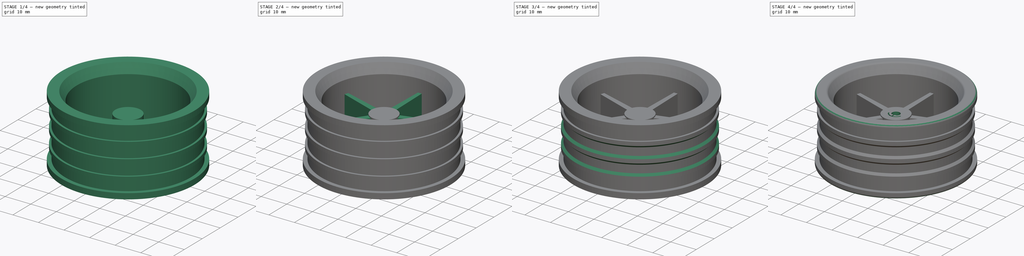
[diagram: build sequence overview — one tinted view per stage of 4, left to right]
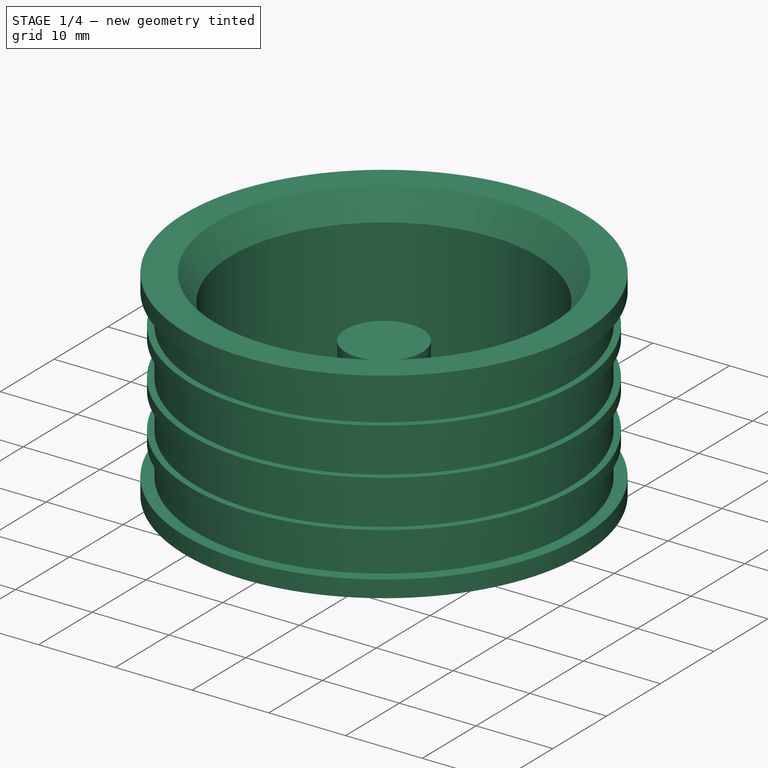
[diagram: stage 1 of 4 — iso view after this stage's code; geometry added in this stage tinted green]
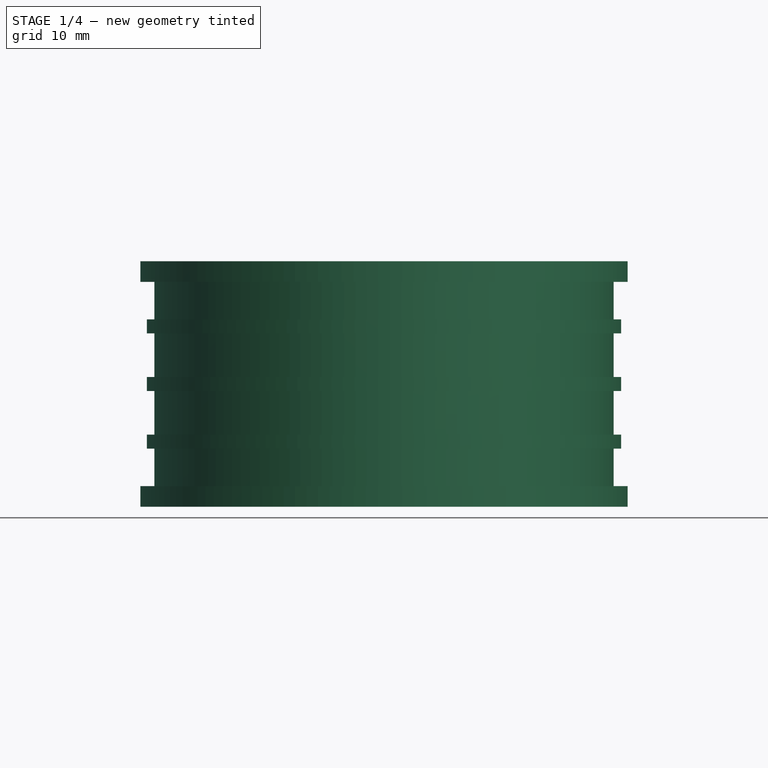
[diagram: stage 1 of 4 — front view after this stage's code; geometry added in this stage tinted green]
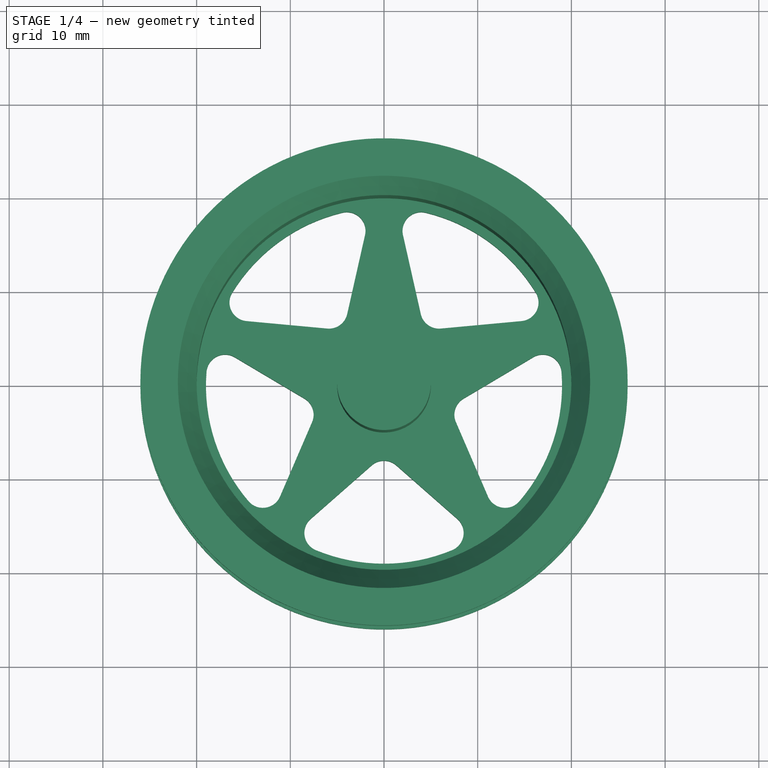
[diagram: stage 1 of 4 — top view after this stage's code; geometry added in this stage tinted green]
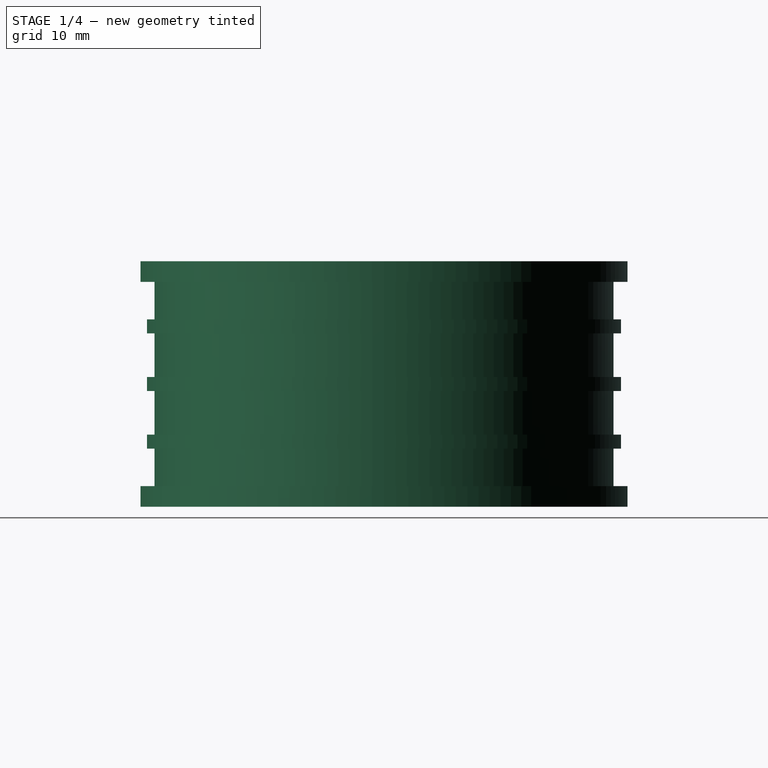
[diagram: stage 1 of 4 — right view after this stage's code; geometry added in this stage tinted green]
FCSTD DOCUMENT  (FreeCAD 0.18R4 (GitTag))
Label: Llants
License: All rights reserved
LicenseURL: http://en.wikipedia.org/wiki/All_rights_reserved
objects: Sketcher::SketchObject×5, PartDesign::Pocket×3, PartDesign::PolarPattern×2, PartDesign::Chamfer×2, PartDesign::Revolution×1, PartDesign::Pad×1, PartDesign::Draft×1, PartDesign::Fillet×1, PartDesign::Body×1, Part::Feature×1
note: 23 computed .brp shape members not serialized (recipe doc carries the construction recipe); baked Part::Feature solids carry a one-line shape summary decoded from their .brp

FEATURE [Sketcher::SketchObject] Sketch
  MapMode = 5
  Placement = pos=(0,0,0) rot=(1,0,0;1.5708rad)
  Support = -> [XZ_Plane]
  sketch-geometry (25):
    g0: LineSegment StartX=0 StartY=0 StartZ=0 EndX=26 EndY=0 EndZ=0
    g1: LineSegment StartX=26 StartY=0 StartZ=0 EndX=26 EndY=2.2 EndZ=0
    g2: LineSegment StartX=26 StartY=2.2 StartZ=0 EndX=24.5 EndY=2.2 EndZ=0
    g3: LineSegment StartX=24.5 StartY=2.2 StartZ=0 EndX=24.5 EndY=6.2 EndZ=0
    g4: LineSegment StartX=24.5 StartY=24 StartZ=0 EndX=26 EndY=24 EndZ=0
    g5: LineSegment StartX=26 StartY=24 StartZ=0 EndX=26 EndY=26.2 EndZ=0
    g6: LineSegment StartX=26 StartY=26.2 StartZ=0 EndX=22 EndY=26.2 EndZ=0
    g7: LineSegment StartX=22 StartY=26.2 StartZ=0 EndX=20 EndY=22.8 EndZ=0
    g8: LineSegment StartX=20 StartY=22.8 StartZ=0 EndX=20 EndY=2.8 EndZ=0
    g9: LineSegment StartX=20 StartY=2.8 StartZ=0 EndX=5 EndY=2.8 EndZ=0
    g10: LineSegment StartX=0 StartY=18.2 StartZ=0 EndX=0 EndY=0 EndZ=0
    g11: LineSegment StartX=24.5 StartY=6.2 StartZ=0 EndX=25.3 EndY=6.2 EndZ=0
    g12: LineSegment StartX=25.3 StartY=6.2 StartZ=0 EndX=25.3 EndY=7.7 EndZ=0
    g13: LineSegment StartX=25.3 StartY=7.7 StartZ=0 EndX=24.5 EndY=7.7 EndZ=0
    g14: LineSegment StartX=24.5 StartY=7.7 StartZ=0 EndX=24.5 EndY=12.35 EndZ=0
    g15: LineSegment StartX=24.5 StartY=12.35 StartZ=0 EndX=25.3 EndY=12.35 EndZ=0
    g16: LineSegment StartX=25.3 StartY=12.35 StartZ=0 EndX=25.3 EndY=13.85 EndZ=0
    g17: LineSegment StartX=25.3 StartY=13.85 StartZ=0 EndX=24.5 EndY=13.85 EndZ=0
    g18: LineSegment StartX=24.5 StartY=13.85 StartZ=0 EndX=24.5 EndY=18.5 EndZ=0
    g19: LineSegment StartX=24.5 StartY=18.5 StartZ=0 EndX=25.3 EndY=18.5 EndZ=0
    g20: LineSegment StartX=25.3 StartY=18.5 StartZ=0 EndX=25.3 EndY=20 EndZ=0
    g21: LineSegment StartX=25.3 StartY=20 StartZ=0 EndX=24.5 EndY=20 EndZ=0
    g22: LineSegment StartX=24.5 StartY=20 StartZ=0 EndX=24.5 EndY=24 EndZ=0
    g23: LineSegment StartX=5 StartY=18.2 StartZ=0 EndX=5 EndY=2.8 EndZ=0
    g24: LineSegment StartX=5 StartY=18.2 StartZ=0 EndX=0 EndY=18.2 EndZ=0
  constraints (73):
    c: Coincident(g0,g1)
    c: Coincident(g1,g2)
    c: Coincident(g2,g3)
    c: Coincident(g22,g4)
    c: Coincident(g4,g5)
    c: Coincident(g5,g6)
    c: Coincident(g6,g7)
    c: Coincident(g7,g8)
    c: Coincident(g8,g9)
    c: Coincident(g10,g0)
    c: Coincident(g0,g-1)
    c: Vertical(g3)
    c: Vertical(g8)
    c: Vertical(g5)
    c: Vertical(g1)
    c: Horizontal(g9)
    c: Horizontal(g0)
    c: Horizontal(g6)
    c: Horizontal(g4)
    c: Horizontal(g2)
    c: Vertical(g4,g1)
    c: Coincident(g11,g12)
    c: Coincident(g12,g13)
    c: Coincident(g13,g14)
    c: Coincident(g14,g15)
    c: Coincident(g15,g16)
    c: Coincident(g16,g17)
    c: Coincident(g17,g18)
    c: Coincident(g18,g19)
    c: Coincident(g19,g20)
    c: Coincident(g20,g21)
    c: Tangent(g3,g22)
    c: Coincident(g21,g22)
    c: Coincident(g11,g3)
    c: Horizontal(g11)
    c: Horizontal(g13)
    c: Horizontal(g15)
    c: Horizontal(g17)
    c: Horizontal(g19)
    c: Horizontal(g21)
    c: Vertical(g20)
    c: Vertical(g18)
    c: Vertical(g16)
    c: Vertical(g12)
    c: Equal(g12,g16)
    c: Equal(g16,g20)
    c: Equal(g15,g17)
    c: Equal(g17,g19)
    c: Equal(g19,g21)
    c: Equal(g21,g11)
    c: Equal(g11,g13)
    c: Equal(g3,g22)
    c: Equal(g18,g14)
    c: Distance(g1,g4) = 21.8
    c: Equal(g1,g5)
    c: Distance(g1) = 2.2
    c: Distance(g0) = 26
    c: Distance(g6) = 4
    c: Distance(g2) = 1.5
    c: Distance(g11) = 0.8
    c: Distance(g11,g20) = 13.8
    c: Distance(g20) = 1.5
    c: Distance(g8) = 20
    c: DistanceY(g0,g8) = 2.8
    c: DistanceX(g0,g8) = 20
    c: Coincident(g23,g9)
    c: Coincident(g10,g24)
    c: Coincident(g23,g24)
    c: Horizontal(g24)
    c: Vertical(g23)
    c: Vertical(g10)
    c: Distance(g24) = 5
    c: DistanceY(g23,g6) = 8
FEATURE [PartDesign::Revolution] Revolution
  Angle = 360
  Axis = (0,-2e-16,1)
  Base = (0,0,0)
  Placement = pos=(0,0,0) rot=(1,0,0;1.5708rad)
  Profile = -> Sketch
  ReferenceAxis = -> Sketch [V_Axis]
  Reversed = true
FEATURE [Sketcher::SketchObject] Sketch001
  MapMode = 5
  Placement = pos=(0,6e-16,2.8) rot=(0,0,1;3.14159rad)
  Support = -> [Revolution]
  sketch-geometry (6):
    g0: LineSegment StartX=-7.81973 StartY=14.2055 StartZ=0 EndX=-1.31973 EndY=8.49723 EndZ=0
    g1: LineSegment StartX=1.31973 StartY=8.49723 StartZ=0 EndX=7.81973 EndY=14.2055 EndZ=0
    g2: ArcOfCircle CenterX=0 CenterY=0 CenterZ=0 NormalX=0 NormalY=0 NormalZ=1 AngleXU=0 Radius=19 StartAngle=1.17845 EndAngle=1.96314
    g3: ArcOfCircle CenterX=6.5 CenterY=15.7083 CenterZ=0 NormalX=0 NormalY=0 NormalZ=1 AngleXU=0 Radius=2 StartAngle=5.43303 EndAngle=7.46164
    g4: ArcOfCircle CenterX=-6.5 CenterY=15.7083 CenterZ=0 NormalX=0 NormalY=0 NormalZ=1 AngleXU=0 Radius=2 StartAngle=1.96314 EndAngle=3.99175
    g5: ArcOfCircle CenterX=-1e-16 CenterY=10 CenterZ=0 NormalX=0 NormalY=0 NormalZ=1 AngleXU=0 Radius=2 StartAngle=3.99175 EndAngle=5.43303
  constraints (14):
    c: Coincident(g2,g-1)
    c: Tangent(g1,g3) = -1.5708
    c: Tangent(g2,g3) = -1.5708
    c: Tangent(g0,g4) = -1.5708
    c: Tangent(g2,g4) = -1.5708
    c: Tangent(g1,g5) = -1.5708
    c: Tangent(g0,g5) = -1.5708
    c: Symmetric(g1,g0,g-2)
    c: Symmetric(g4,g3,g-2)
    c: Equal(g4,g5)
    c: Radius(g2) = 19
    c: Distance(g3,g4) = 13
    c: Distance(g5,g2) = 10
    c: Radius(g3) = 2
FEATURE [PartDesign::Pocket] Pocket
  BaseFeature = -> Revolution
  Length = 5
  Length2 = 100
  Placement = pos=(0,0,0) rot=(1,0,0;1.5708rad)
  Profile = -> Sketch001
  Type = 0
FEATURE [PartDesign::PolarPattern] PolarPattern
  Angle = 360
  Axis = -> Z_Axis
  BaseFeature = -> Pocket
  Occurrences = 5
  Originals = -> [Pocket]
  Placement = pos=(0,0,0) rot=(1,0,0;1.5708rad)
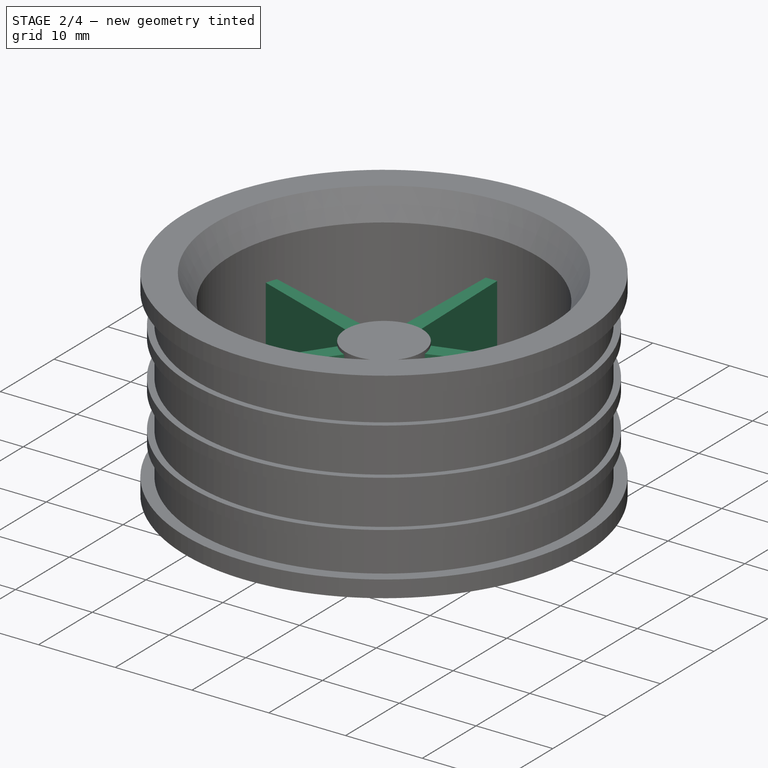
[diagram: stage 2 of 4 — iso view after this stage's code; geometry added in this stage tinted green]
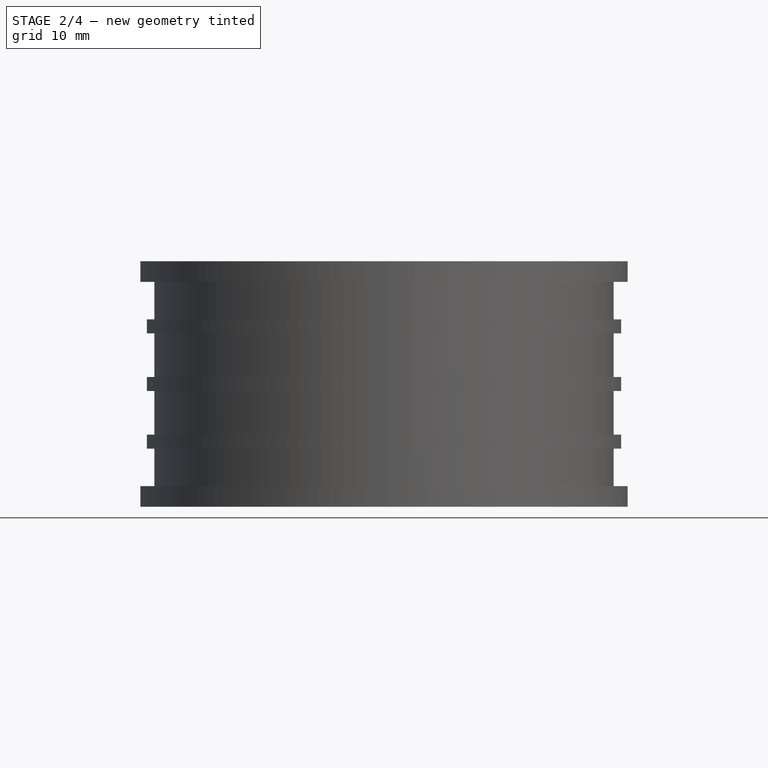
[diagram: stage 2 of 4 — front view after this stage's code; geometry added in this stage tinted green]
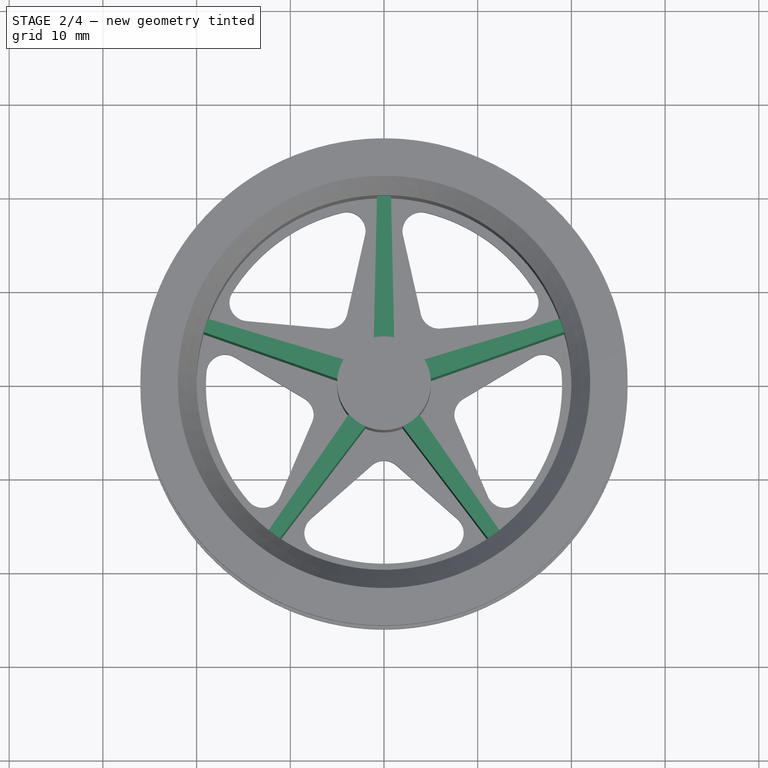
[diagram: stage 2 of 4 — top view after this stage's code; geometry added in this stage tinted green]
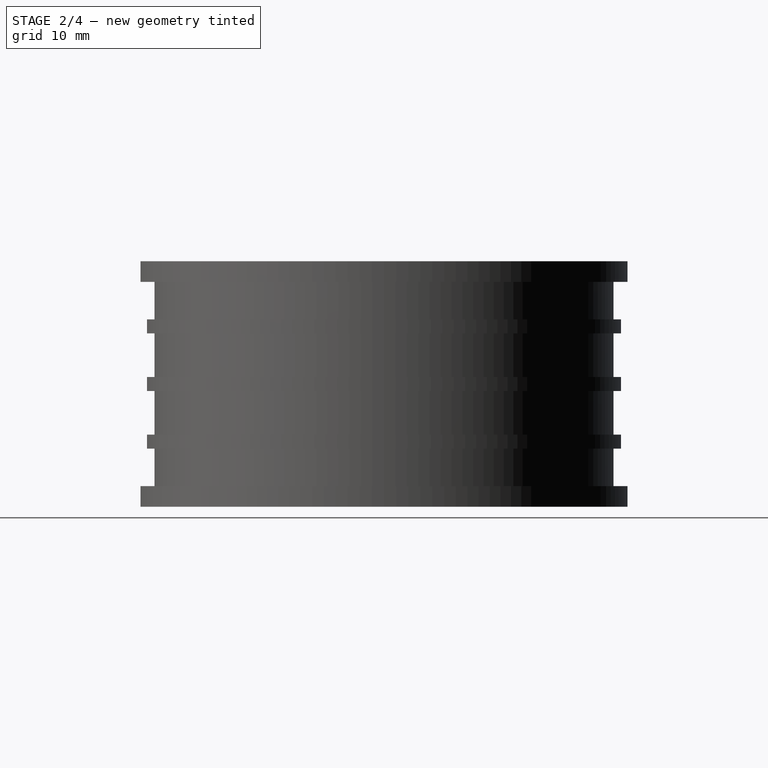
[diagram: stage 2 of 4 — right view after this stage's code; geometry added in this stage tinted green]
FEATURE [Sketcher::SketchObject] Sketch002
  MapMode = 5
  Placement = pos=(0,6e-16,2.8) rot=(0,0,1;3.14159rad)
  Support = -> [PolarPattern]
  sketch-geometry (4):
    g0: LineSegment StartX=-1.2 StartY=0 StartZ=0 EndX=-0.7 EndY=-22 EndZ=0
    g1: LineSegment StartX=-0.7 StartY=-22 StartZ=0 EndX=0.7 EndY=-22 EndZ=0
    g2: LineSegment StartX=0.7 StartY=-22 StartZ=0 EndX=1.2 EndY=0 EndZ=0
    g3: LineSegment StartX=1.2 StartY=0 StartZ=0 EndX=-1.2 EndY=0 EndZ=0
  constraints (10):
    c: Coincident(g0,g1)
    c: Coincident(g1,g2)
    c: Coincident(g2,g3)
    c: Coincident(g0,g3)
    c: Symmetric(g2,g0,g-2)
    c: Symmetric(g1,g0,g-2)
    c: PointOnObject(g-1,g3)
    c: Distance(g3) = 2.4
    c: Distance(g1) = 1.4
    c: DistanceY(g1,g2) = 22
FEATURE [PartDesign::Pad] Pad
  BaseFeature = -> PolarPattern
  Length = 15
  Length2 = 100
  Placement = pos=(0,0,0) rot=(1,0,0;1.5708rad)
  Profile = -> Sketch002
  Type = 0
FEATURE [PartDesign::PolarPattern] PolarPattern001
  Angle = 360
  Axis = -> Sketch002 [N_Axis]
  BaseFeature = -> Pad
  Occurrences = 5
  Originals = -> [Pad]
  Placement = pos=(0,0,0) rot=(1,0,0;1.5708rad)
FEATURE [Sketcher::SketchObject] Sketch004
  MapMode = 5
  Placement = pos=(0,0,0) rot=(1,0,0;3.14159rad)
  Support = -> [PolarPattern001]
  sketch-geometry (1):
    g0: Circle CenterX=0 CenterY=0 CenterZ=0 NormalX=0 NormalY=0 NormalZ=1 AngleXU=0 Radius=4.5
  constraints (2):
    c: Radius(g0) = 4.5
    c: Coincident(g0,g-1)
FEATURE [PartDesign::Pocket] Pocket002
  BaseFeature = -> PolarPattern001
  Length = 5
  Length2 = 100
  Placement = pos=(0,0,0) rot=(1,0,0;1.5708rad)
  Profile = -> Sketch004
  Type = 0
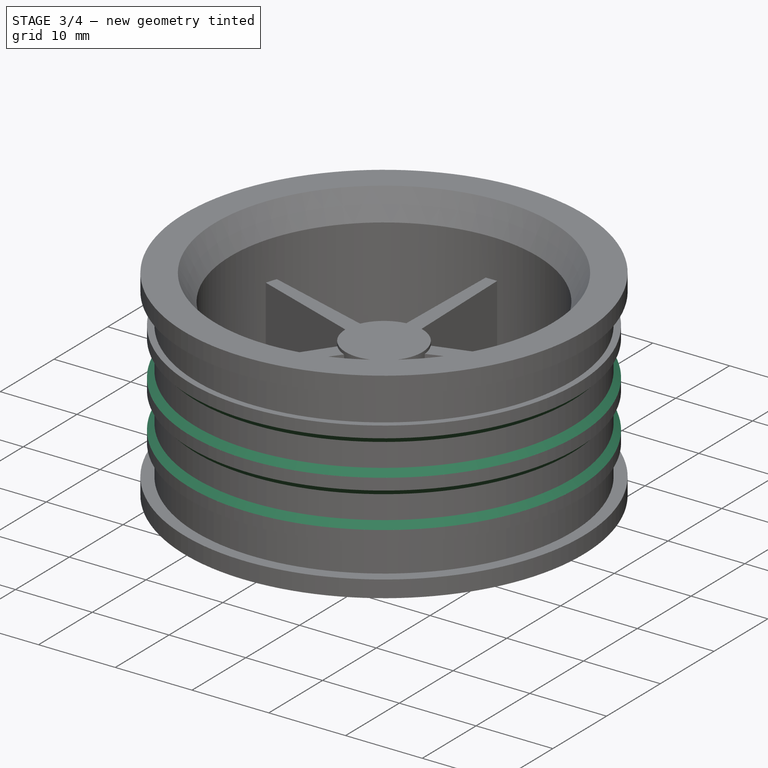
[diagram: stage 3 of 4 — iso view after this stage's code; geometry added in this stage tinted green]
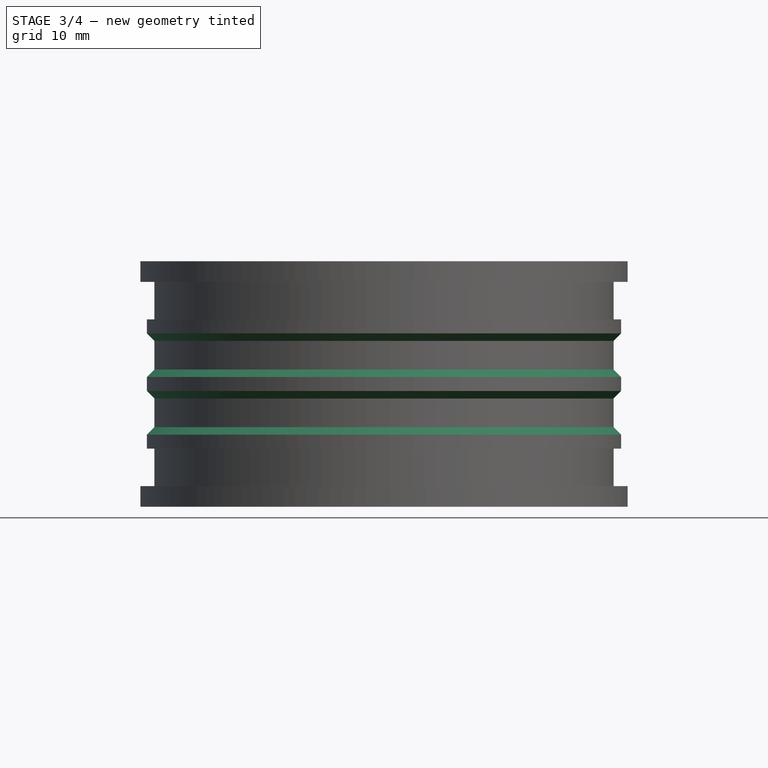
[diagram: stage 3 of 4 — front view after this stage's code; geometry added in this stage tinted green]
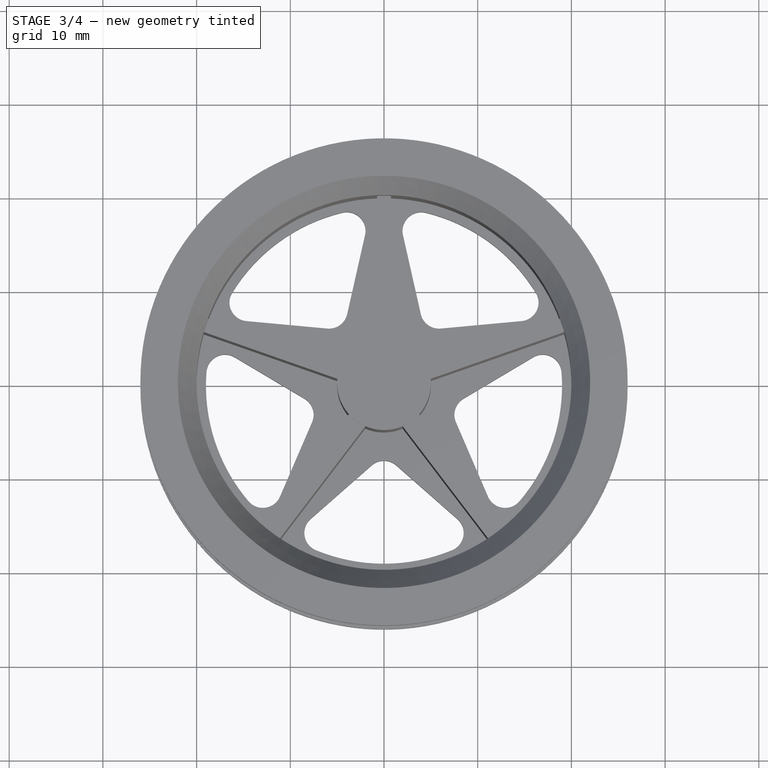
[diagram: stage 3 of 4 — top view after this stage's code; geometry added in this stage tinted green]
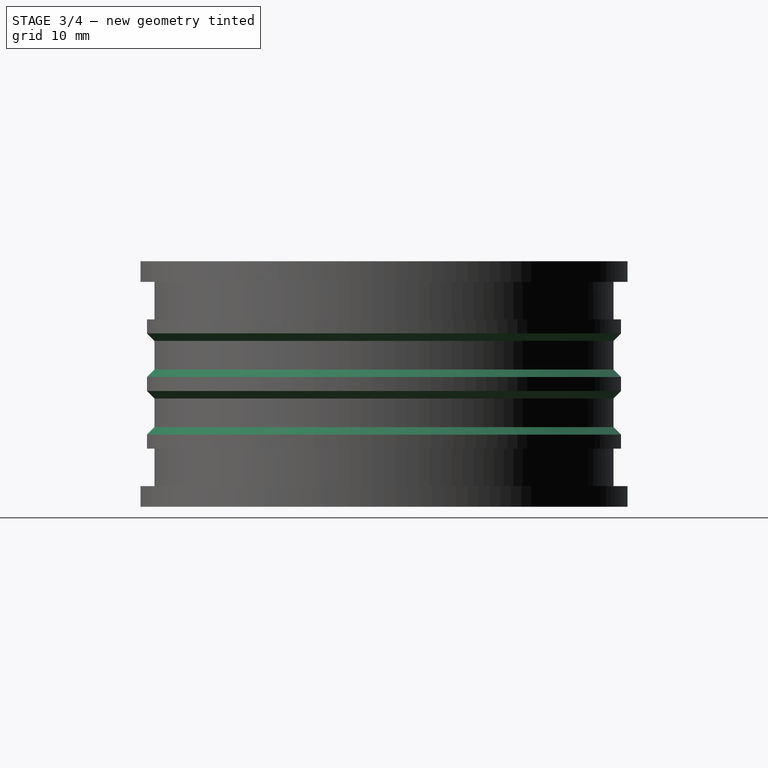
[diagram: stage 3 of 4 — right view after this stage's code; geometry added in this stage tinted green]
FEATURE [PartDesign::Draft] Draft
  Angle = 15
  Base = -> Pocket002 [Face58]
  BaseFeature = -> Pocket002
  NeutralPlane = -> Pocket002 [Face55]
  Placement = pos=(0,0,0) rot=(1,0,0;1.5708rad)
FEATURE [PartDesign::Chamfer] Chamfer
  Base = -> Draft [Face71,Face72]
  BaseFeature = -> Draft
  Placement = pos=(0,0,0) rot=(1,0,0;1.5708rad)
  Size = 0.799
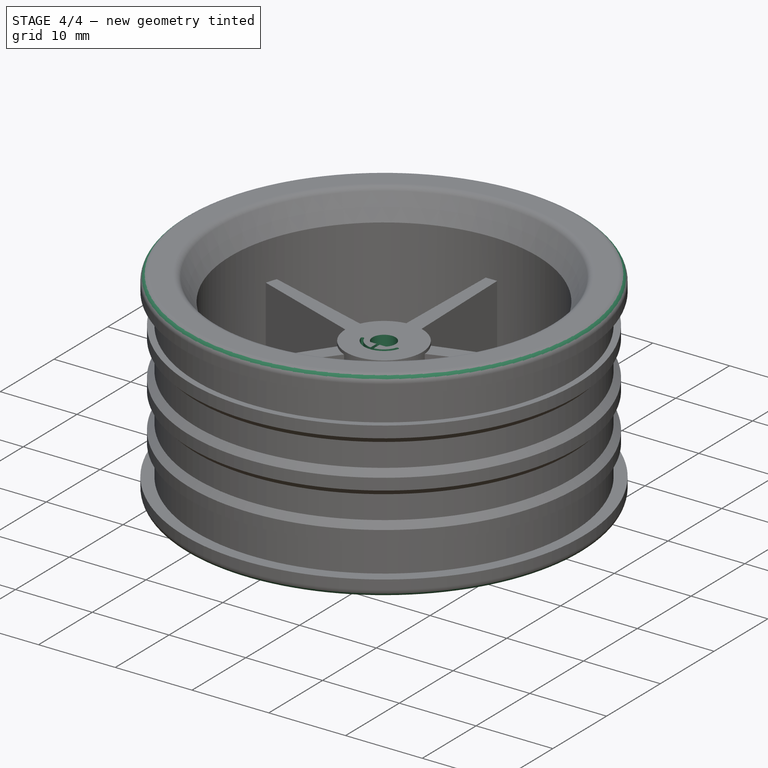
[diagram: stage 4 of 4 — iso view after this stage's code; geometry added in this stage tinted green]
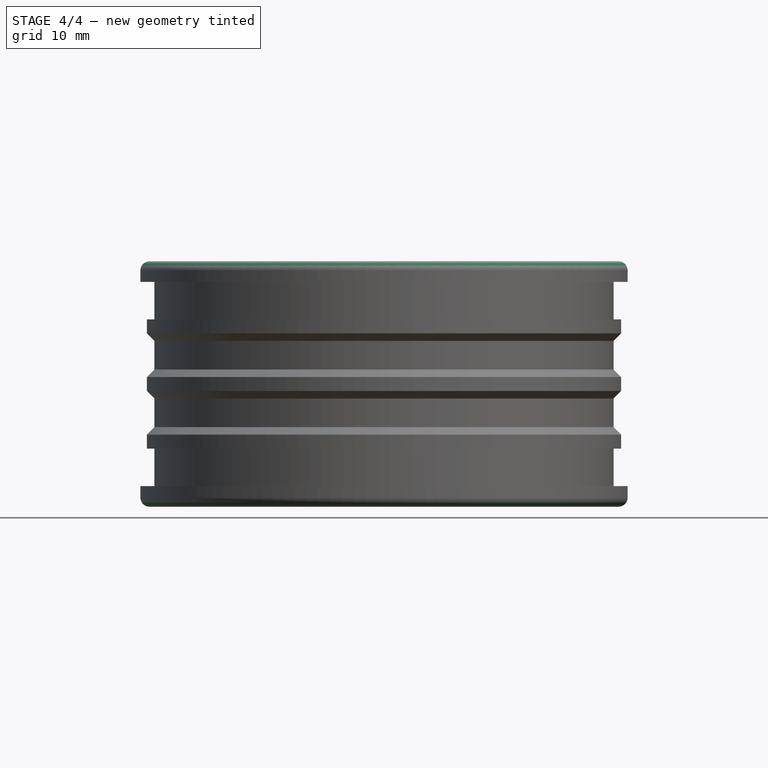
[diagram: stage 4 of 4 — front view after this stage's code; geometry added in this stage tinted green]
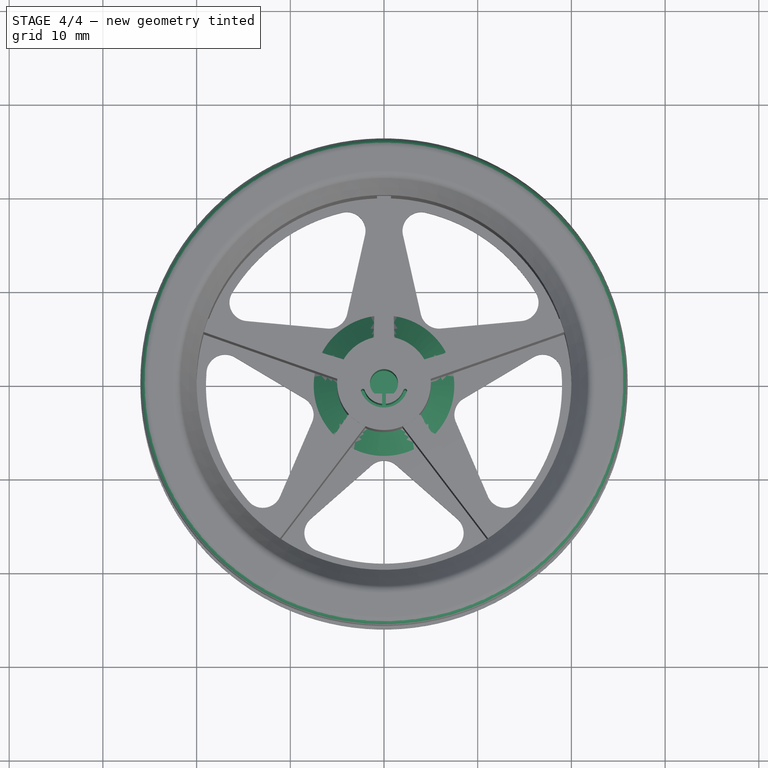
[diagram: stage 4 of 4 — top view after this stage's code; geometry added in this stage tinted green]
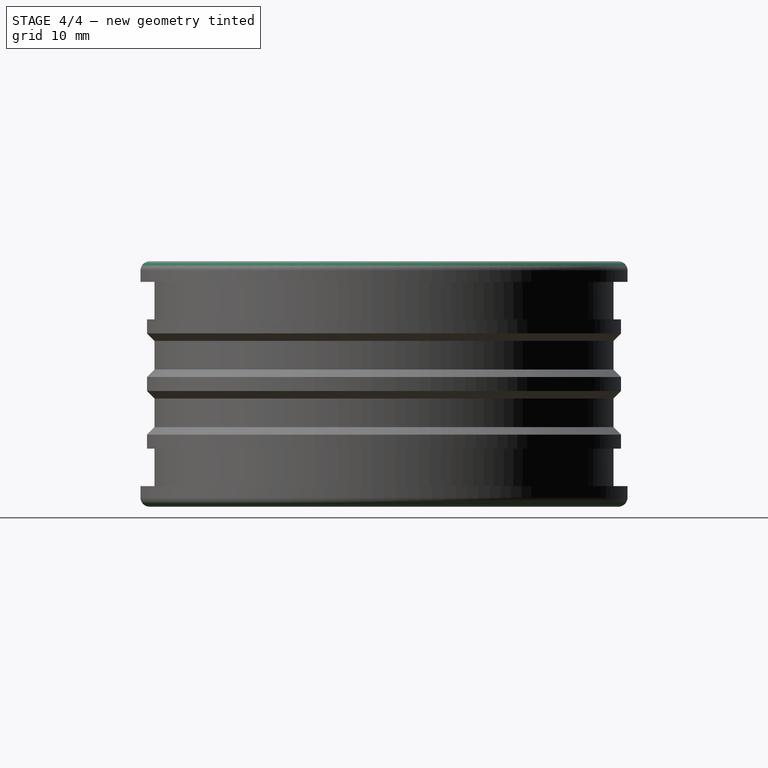
[diagram: stage 4 of 4 — right view after this stage's code; geometry added in this stage tinted green]
FEATURE [Sketcher::SketchObject] Sketch003
  MapMode = 5
  Placement = pos=(0,4e-15,18.2) rot=(0,0,1;3.14159rad)
  Support = -> [Chamfer]
  sketch-geometry (15):
    g0: ArcOfCircle CenterX=0 CenterY=0 CenterZ=0 NormalX=0 NormalY=0 NormalZ=1 AngleXU=0 Radius=1.5 StartAngle=2.31838 EndAngle=4.71239
    g1: LineSegment StartX=-1.0198 StartY=1.1 StartZ=0 EndX=-0.2 EndY=1.1 EndZ=0
    g2: LineSegment [constr] StartX=1.0198 StartY=1.1 StartZ=0 EndX=-1.0198 EndY=1.1 EndZ=0
    g3: LineSegment [constr] StartX=-1.0198 StartY=1.1 StartZ=0 EndX=-1.0198 EndY=0 EndZ=0
    g4: LineSegment [constr] StartX=-1.0198 StartY=0 StartZ=0 EndX=1.0198 EndY=0 EndZ=0
    g5: LineSegment [constr] StartX=1.0198 StartY=0 StartZ=0 EndX=1.0198 EndY=1.1 EndZ=0
    g6: ArcOfCircle CenterX=0 CenterY=0 CenterZ=0 NormalX=0 NormalY=0 NormalZ=1 AngleXU=0 Radius=2.6 StartAngle=0.339838 EndAngle=2.80176
    g7: ArcOfCircle CenterX=0 CenterY=0 CenterZ=0 NormalX=0 NormalY=0 NormalZ=1 AngleXU=0 Radius=2.2 StartAngle=0.339834 EndAngle=1.47976
    g8: ArcOfCircle CenterX=0 CenterY=0 CenterZ=0 NormalX=0 NormalY=0 NormalZ=1 AngleXU=0 Radius=2.2 StartAngle=1.66183 EndAngle=2.80176
    g9: ArcOfCircle CenterX=-2.26274 CenterY=0.8 CenterZ=0 NormalX=0 NormalY=0 NormalZ=1 AngleXU=0 Radius=0.2 StartAngle=2.80175 EndAngle=5.94334
    g10: ArcOfCircle CenterX=2.26274 CenterY=0.8 CenterZ=0 NormalX=0 NormalY=0 NormalZ=1 AngleXU=0 Radius=0.2 StartAngle=3.48146 EndAngle=6.62303
    g11: LineSegment StartX=-0.2 StartY=2.19089 StartZ=0 EndX=-0.2 EndY=1.1 EndZ=0
    g12: LineSegment StartX=0.2 StartY=2.19089 StartZ=0 EndX=0.2 EndY=1.1 EndZ=0
    g13: LineSegment StartX=0.2 StartY=1.1 StartZ=0 EndX=1.0198 EndY=1.1 EndZ=0
    g14: ArcOfCircle CenterX=0 CenterY=0 CenterZ=0 NormalX=0 NormalY=0 NormalZ=1 AngleXU=0 Radius=1.5 StartAngle=4.71239 EndAngle=7.1064
  constraints (43):
    c: Coincident(g0,g1)
    c: Distance(g5) = 1.1
    c: Vertical(g11)
    c: Vertical(g12)
    c: Symmetric(g1,g12,g-2)
    c: Coincident(g7,g12)
    c: Coincident(g1,g11)
    c: Coincident(g8,g11)
    c: Radius(g6) = 2.6
    c: Radius(g7) = 2.2
    c: Coincident(g4,g5)
    c: Vertical(g5)
    c: Vertical(g3)
    c: PointOnObject(g3,g-1)
    c: Horizontal(g4)
    c: Coincident(g2,g5)
    c: Coincident(g2,g13)
    c: Coincident(g0,g2)
    c: Coincident(g0,g3)
    c: Coincident(g7,g10)
    c: Coincident(g6,g10)
    c: Coincident(g6,g9)
    c: Coincident(g8,g9)
    c: Coincident(g12,g13)
    c: Coincident(g0,g-1)
    c: Tangent(g10,g6)
    c: Tangent(g10,g7)
    c: Tangent(g9,g8)
    c: Distance(g1,g12) = 0.4
    c: Equal(g12,g11)
    c: Coincident(g7,g0)
    c: Coincident(g8,g0)
    c: Horizontal(g13)
    c: Horizontal(g2)
    c: Coincident(g14,g0)
    c: Radius(g14) = 1.5
    c: Coincident(g3,g4)
    c: Coincident(g0,g14)
    c: Coincident(g2,g14)
    c: Symmetric(g10,g9,g-2)
    c: Coincident(g0,g6)
    c: DistanceY(g0,g10) = 0.8
    c: PointOnObject(g0,g-2)
FEATURE [PartDesign::Pocket] Pocket003
  BaseFeature = -> Chamfer
  Length = 10
  Length2 = 100
  Placement = pos=(0,0,0) rot=(1,0,0;1.5708rad)
  Profile = -> Sketch003
  Type = 0
FEATURE [PartDesign::Fillet] Fillet
  Base = -> Pocket003 [Face86,Face13]
  BaseFeature = -> Pocket003
  Placement = pos=(0,0,0) rot=(1,0,0;1.5708rad)
  Radius = 1
FEATURE [PartDesign::Chamfer] Chamfer001
  Base = -> Fillet [Edge186,Edge181,Edge167,Edge177,Edge172]
  BaseFeature = -> Fillet
  Placement = pos=(0,0,0) rot=(1,0,0;1.5708rad)
  Size = 2.5
FEATURE [PartDesign::Body] Body
  Group = -> [Sketch,Revolution,Sketch001,Pocket,PolarPattern,Sketch002,Pad,PolarPattern001,Sketch003,Sketch004,Pocket002,Draft,Chamfer,Pocket003,Fillet,Chamfer001]
  Origin = -> Origin
  Tip = -> Chamfer001
FEATURE [Part::Feature] Part__Feature  label="Wheel D65x26"
  shape: bbox 69.04 x 69 x 30 mm, 803 faces, 2 solids (baked)
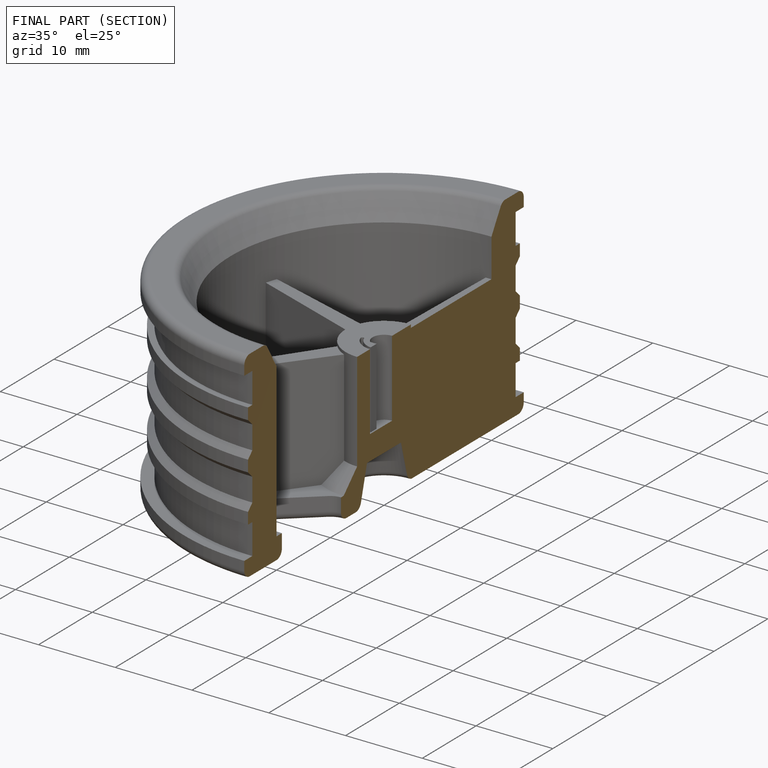
[diagram: finished part — half-section view (interior)]
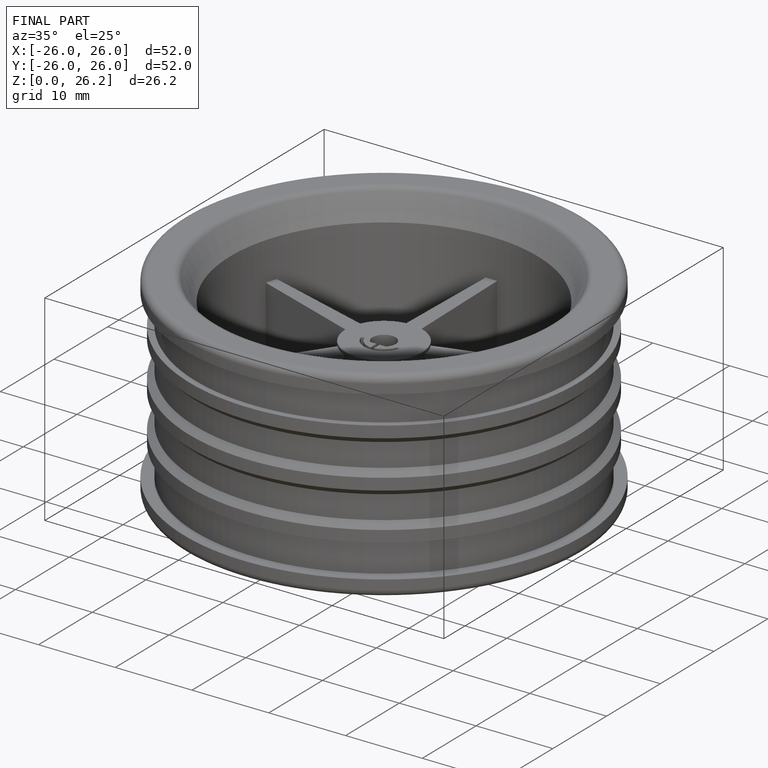
[diagram: finished part — iso view with bounding-box wireframe]
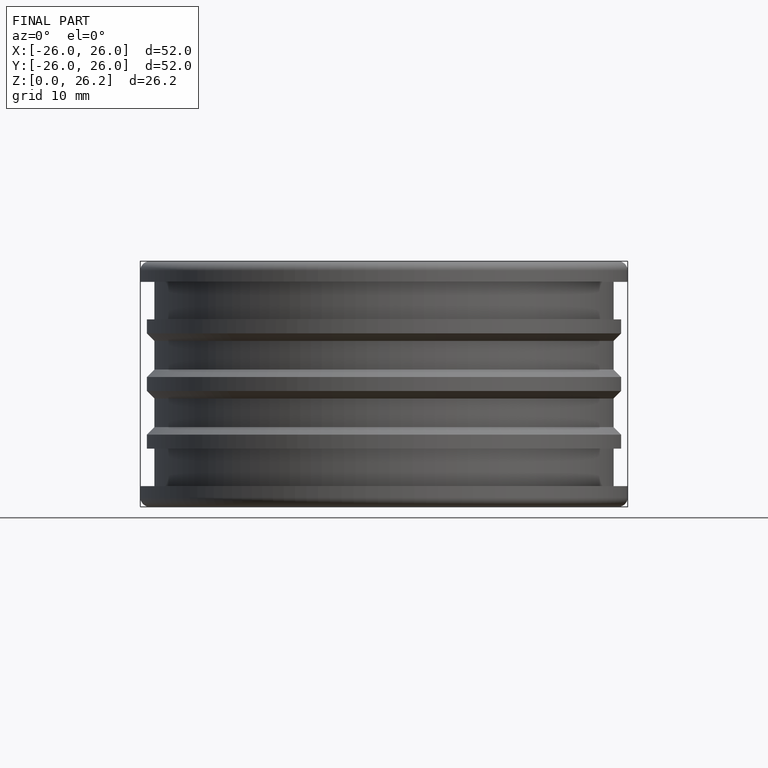
[diagram: finished part — front view with bounding-box wireframe]
